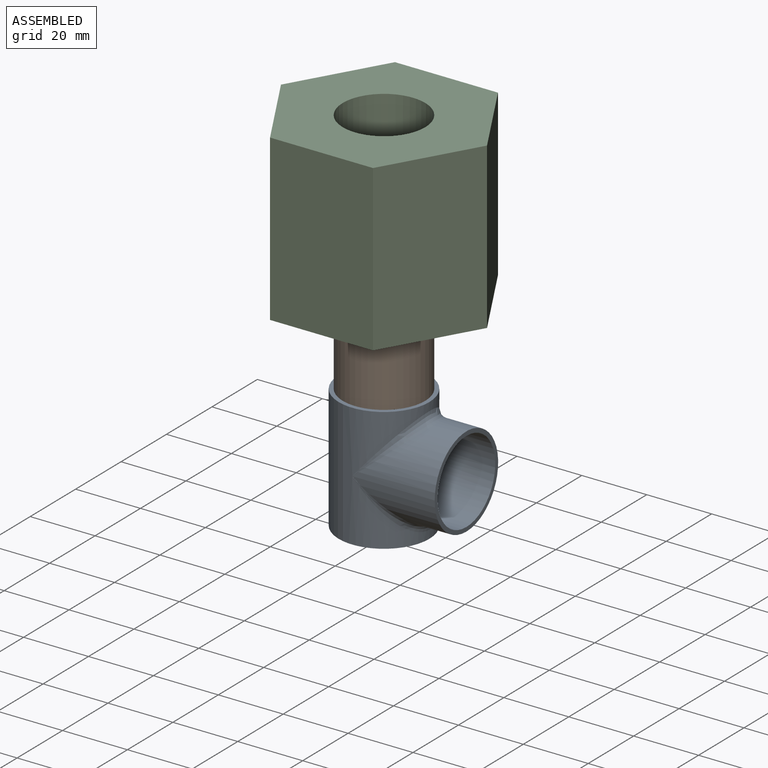
[diagram: assembled view]
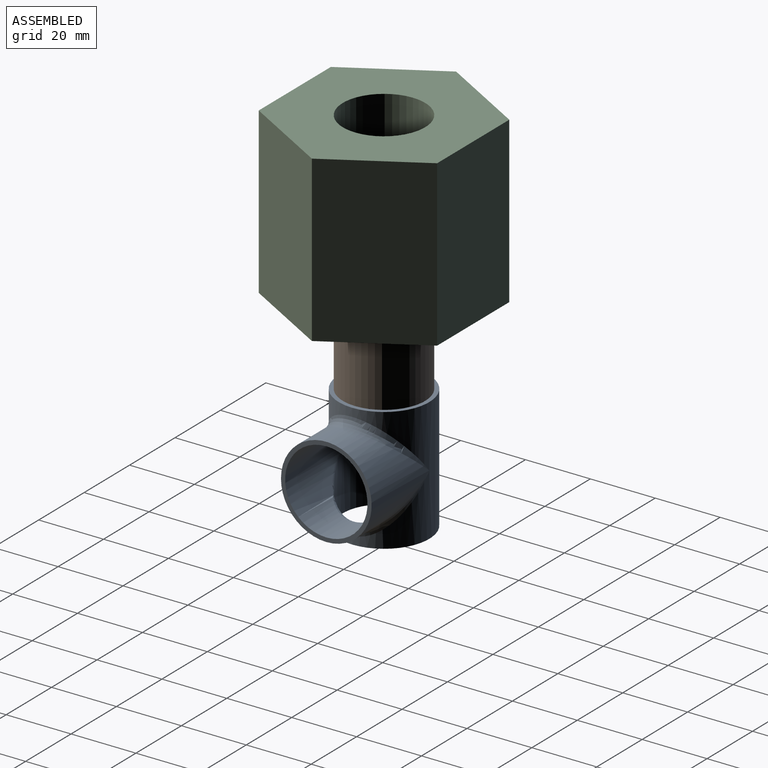
[diagram: assembled view, second angle]
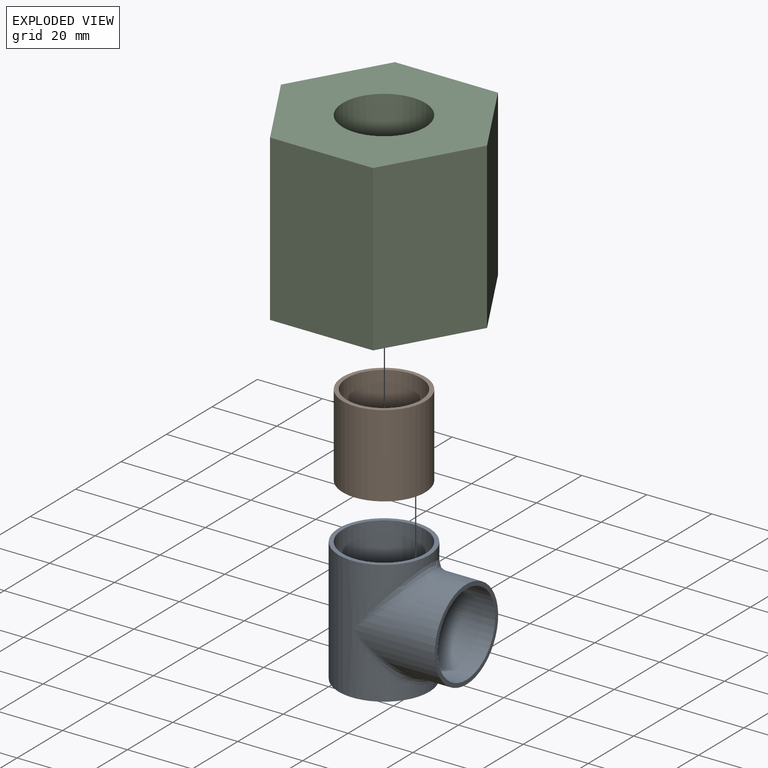
[diagram: exploded view]
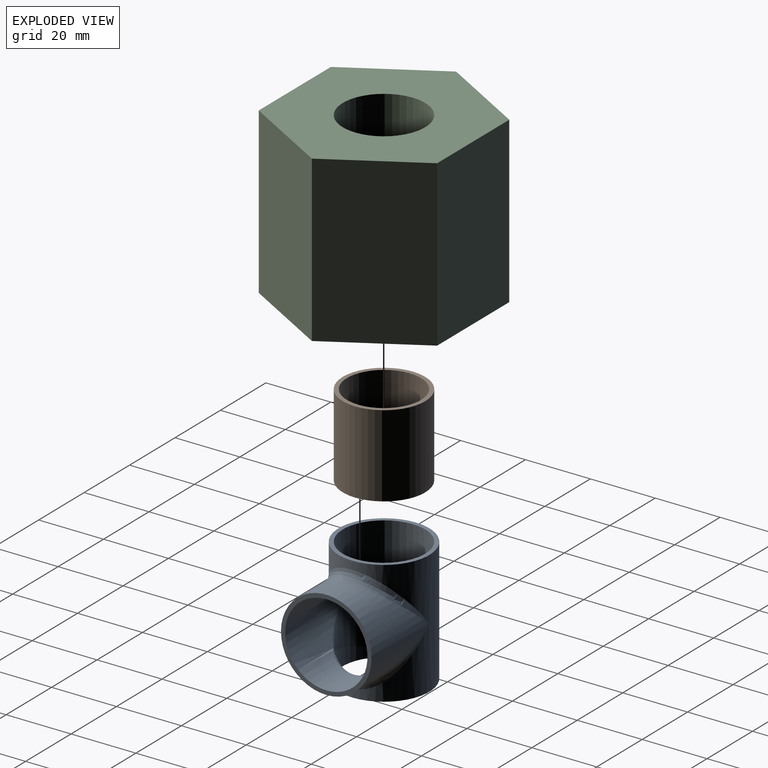
[diagram: exploded view, second angle]
ASSEMBLY  parts=3 mates=2
PART A: 14 faces, bbox 39.4x27.9x38.1 mm
  f0: cylinder r=13.97mm len=38.1mm, axis (0,0,-1), area 2421.7mm2, adj f1,f11,f12,f13
  f1: plane 27.94x27.94mm, normal (0,0,1), area 106.4mm2, adj f0,f2
  f2: cylinder r=12.7mm len=38.1mm, axis (0,0,-1), area 2330.5mm2, adj f1,f3,f7,f8,f9,f10,f13
  f3: bspline ~25.4x13.97mm, area 45.5mm2, adj f2,f4
  f4: cylinder r=12.7mm len=25.4mm, axis (1,0,0), area 1317.2mm2, adj f3,f5,f8,f9
  f5: plane 27.94x27.94mm, normal (1,0,0), area 106.4mm2, adj f4,f6
  f6: cylinder r=13.97mm len=27.94mm, axis (-1,0,0), area 1306.9mm2, adj f5,f11,f12
  f7: cylinder r=12.7mm len=0.3mm, axis (1,0,0), area 0mm2, adj f2
  f8: bspline ~10.2x10.2mm, area 3.3mm2, adj f2,f4
  f9: bspline ~22.78x13.97mm, area 27.1mm2, adj f2,f4
  f10: cylinder r=12.7mm len=0.3mm, axis (1,0,0), area 0mm2, adj f2
  f11: bspline ~27.94x16.51mm, area 109mm2, adj f0,f6
  f12: bspline ~27.94x16.51mm, area 124.8mm2, adj f0,f6
  f13: plane 27.94x27.94mm, normal (0,0,-1), area 106.4mm2, adj f0,f2
PART B: 4 faces, bbox 25.4x25.4x25.4 mm
  f0: cylinder r=11.43mm len=25.4mm, axis (0,0,-1), area 1824.1mm2, adj f2,f3
  f1: cylinder r=12.7mm len=25.4mm, axis (0,0,-1), area 2026.8mm2, adj f2,f3
  f2: plane 25.4x25.4mm, normal (0,0,1), area 96.3mm2, adj f0,f1
  f3: plane 25.4x25.4mm, normal (0,0,-1), area 96.3mm2, adj f0,f1
PART C: 9 faces, bbox 63.5x55x50.8 mm
  f0: plane 50.8x27.5mm, normal (-0.87,0.5,0), area 1612.9mm2, adj f1,f5,f7,f8
  f1: plane 50.8x27.5mm, normal (-0.87,-0.5,0), area 1612.9mm2, adj f0,f2,f7,f8
  f2: plane 50.8x31.75mm, normal (0,-1,0), area 1612.9mm2, adj f1,f3,f7,f8
  f3: plane 50.8x27.5mm, normal (0.87,-0.5,0), area 1612.9mm2, adj f2,f4,f7,f8
  f4: plane 50.8x27.5mm, normal (0.87,0.5,0), area 1612.9mm2, adj f3,f5,f7,f8
  f5: plane 50.8x31.75mm, normal (0,1,0), area 1612.9mm2, adj f0,f4,f7,f8
  f6: cylinder r=12.7mm len=50.8mm, axis (0,0,-1), area 4053.7mm2, adj f7,f8
  f7: plane 63.5x54.99mm, normal (0,0,1), area 2112.3mm2, adj f0,f1,f2,f3,f4,f5,f6
  f8: plane 63.5x54.99mm, normal (0,0,-1), area 2112.3mm2, adj f0,f1,f2,f3,f4,f5,f6
PLACE A t=(-8.76,-31.68,-55.18)mm
PLACE B t=(-8.76,-31.68,-17.08)mm
PLACE C t=(-8.76,-31.68,8.32)mm
MATE fastened A.f2 <-> B.f0  axis (0,0,1) through (-8.76,-31.68,-17.08)mm
MATE fastened C.f6 <-> B.f1  axis (0,0,-1) through (-8.76,-31.68,8.32)mm
